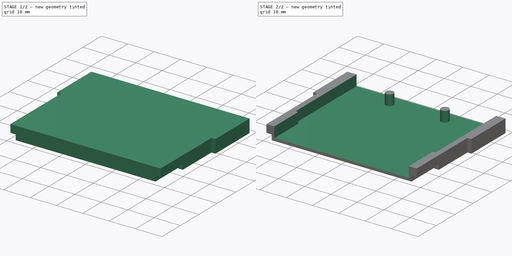
[diagram: build sequence overview — one tinted view per stage of 2, left to right]
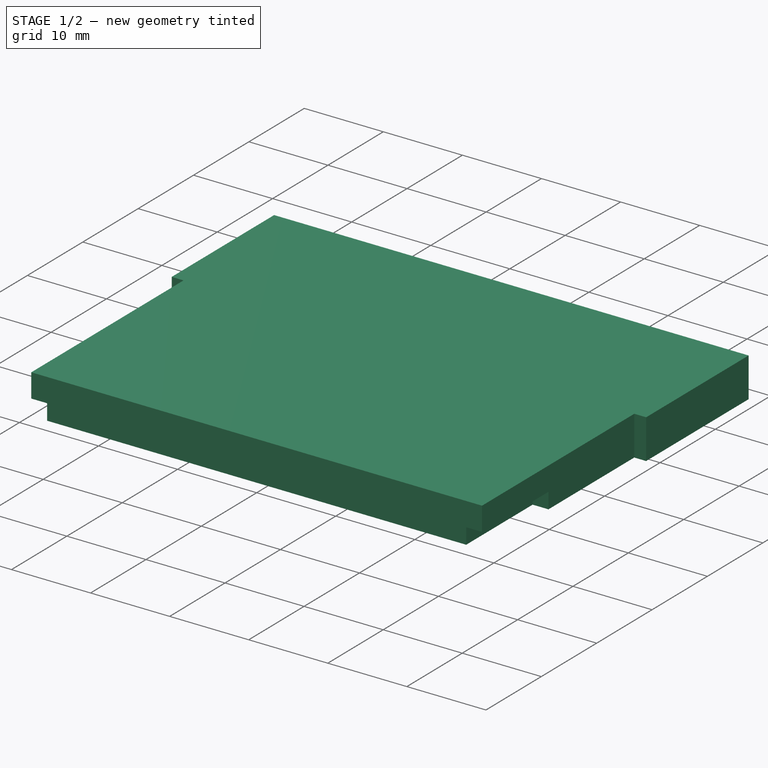
[diagram: stage 1 of 2 — iso view after this stage's code; geometry added in this stage tinted green]
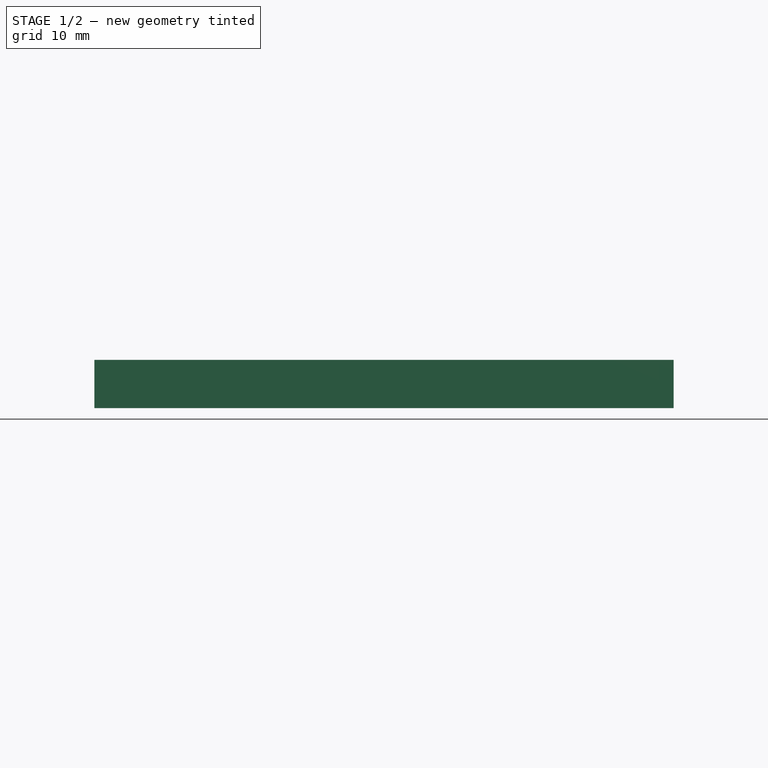
[diagram: stage 1 of 2 — front view after this stage's code; geometry added in this stage tinted green]
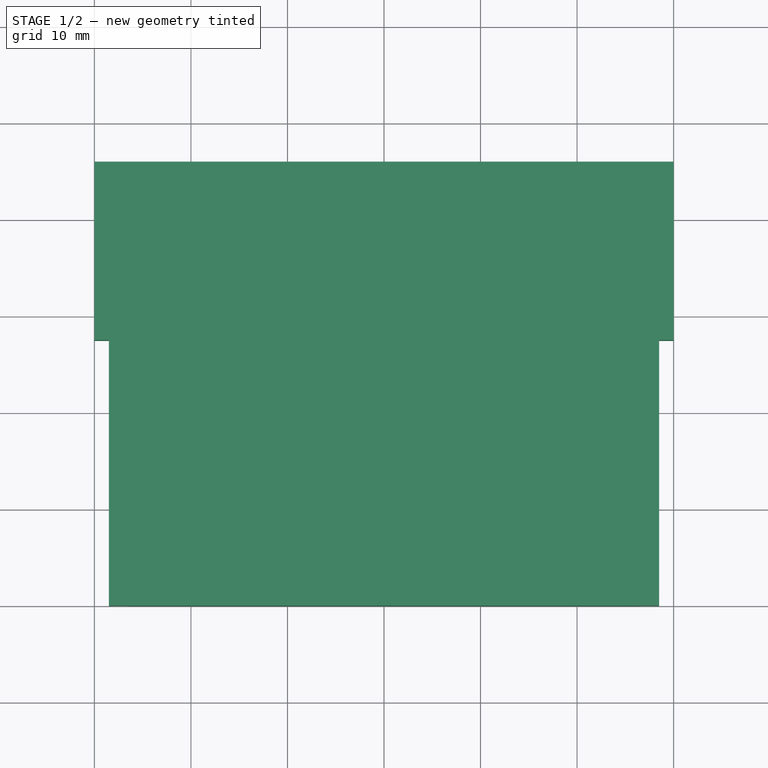
[diagram: stage 1 of 2 — top view after this stage's code; geometry added in this stage tinted green]
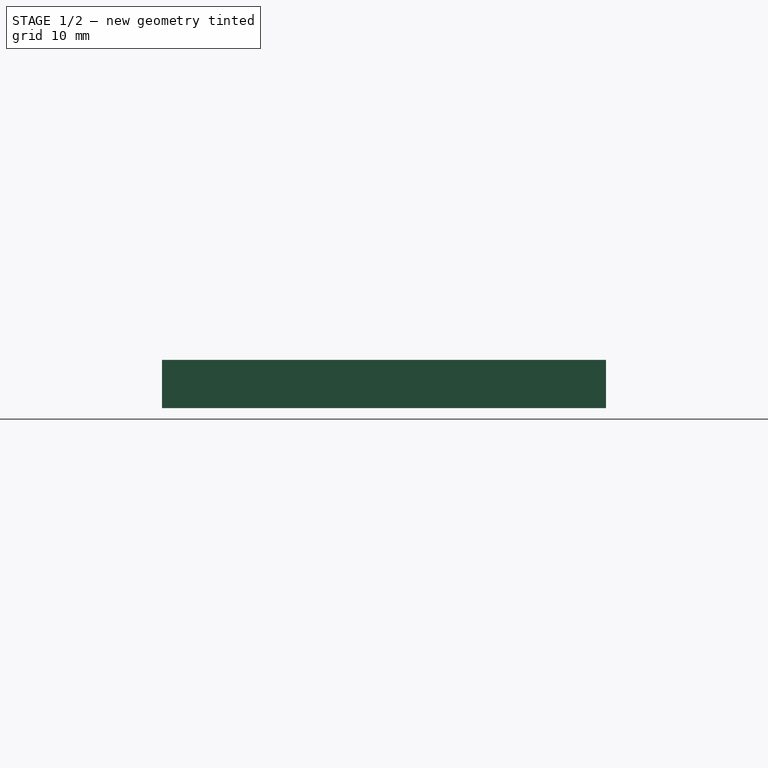
[diagram: stage 1 of 2 — right view after this stage's code; geometry added in this stage tinted green]
FCSTD DOCUMENT  (FreeCAD 0.18R4 (GitTag))
Label: case
License: All rights reserved
LicenseURL: http://en.wikipedia.org/wiki/All_rights_reserved
objects: Sketcher::SketchObject×4, PartDesign::Pad×2, PartDesign::Pocket×2, PartDesign::Body×1, App::Part×1
note: 13 computed .brp shape members not serialized (recipe doc carries the construction recipe); baked Part::Feature solids carry a one-line shape summary decoded from their .brp

FEATURE [Sketcher::SketchObject] Sketch
  MapMode = 5
  Support = -> [XY_Plane001]
  sketch-geometry (8):
    g0: LineSegment StartX=-28.5 StartY=0 StartZ=0 EndX=28.5 EndY=0 EndZ=0
    g1: LineSegment StartX=28.5 StartY=0 StartZ=0 EndX=28.5 EndY=27.5 EndZ=0
    g2: LineSegment StartX=28.5 StartY=27.5 StartZ=0 EndX=30 EndY=27.5 EndZ=0
    g3: LineSegment StartX=30 StartY=27.5 StartZ=0 EndX=30 EndY=46 EndZ=0
    g4: LineSegment StartX=30 StartY=46 StartZ=0 EndX=-30 EndY=46 EndZ=0
    g5: LineSegment StartX=-30 StartY=46 StartZ=0 EndX=-30 EndY=27.5 EndZ=0
    g6: LineSegment StartX=-30 StartY=27.5 StartZ=0 EndX=-28.5 EndY=27.5 EndZ=0
    g7: LineSegment StartX=-28.5 StartY=27.5 StartZ=0 EndX=-28.5 EndY=0 EndZ=0
  constraints (22):
    c: Coincident(g0,g1)
    c: Coincident(g1,g2)
    c: Coincident(g2,g3)
    c: Coincident(g3,g4)
    c: Coincident(g4,g5)
    c: Coincident(g5,g6)
    c: Coincident(g6,g7)
    c: Coincident(g7,g0)
    c: Vertical(g7)
    c: Vertical(g5)
    c: Vertical(g3)
    c: Vertical(g1)
    c: Horizontal(g6)
    c: Horizontal(g2)
    c: DistanceX(g4,g4) = 60
    c: Symmetric(g4,g3,g-2)
    c: DistanceX(g0,g0) = 57
    c: DistanceY(g1,g1) = 27.5
    c: PointOnObject(g-1,g0)
    c: Symmetric(g6,g1,g-2)
    c: Horizontal(g0)
    c: DistanceY(g0,g4) = 46
FEATURE [PartDesign::Pad] Pad
  Length = 5
  Length2 = 100
  Profile = -> Sketch
  Type = 0
FEATURE [Sketcher::SketchObject] Sketch001
  ExternalGeometry = -> [Pad]
  MapMode = 5
  Placement = pos=(0,0,0) rot=(1,0,0;3.14159rad)
  Support = -> [Pad]
  sketch-geometry (8):
    g0: LineSegment StartX=-28.5 StartY=0 StartZ=0 EndX=-26.5 EndY=0 EndZ=0
    g1: LineSegment StartX=-26.5 StartY=0 StartZ=0 EndX=-26.5 EndY=-12 EndZ=0
    g2: LineSegment StartX=-26.5 StartY=-12 StartZ=0 EndX=-28.5 EndY=-12 EndZ=0
    g3: LineSegment StartX=-28.5 StartY=-12 StartZ=0 EndX=-28.5 EndY=0 EndZ=0
    g4: LineSegment StartX=26.5 StartY=0 StartZ=0 EndX=28.5 EndY=0 EndZ=0
    g5: LineSegment StartX=28.5 StartY=0 StartZ=0 EndX=28.5 EndY=-12 EndZ=0
    g6: LineSegment StartX=28.5 StartY=-12 StartZ=0 EndX=26.5 EndY=-12 EndZ=0
    g7: LineSegment StartX=26.5 StartY=-12 StartZ=0 EndX=26.5 EndY=0 EndZ=0
  constraints (21):
    c: Coincident(g0,g1)
    c: Coincident(g1,g2)
    c: Coincident(g2,g3)
    c: Coincident(g3,g0)
    c: Horizontal(g0)
    c: Horizontal(g2)
    c: Vertical(g1)
    c: Vertical(g3)
    c: Coincident(g4,g5)
    c: Coincident(g5,g6)
    c: Coincident(g6,g7)
    c: Coincident(g7,g4)
    c: Horizontal(g4)
    c: Horizontal(g6)
    c: Vertical(g5)
    c: Vertical(g7)
    c: Coincident(g0,g-3)
    c: Symmetric(g1,g6,g-2)
    c: Symmetric(g0,g4,g-2)
    c: DistanceX(g0,g0) = 2
    c: DistanceY(g3,g3) = 12
FEATURE [PartDesign::Pocket] Pocket
  BaseFeature = -> Pad
  Length = 2
  Length2 = 100
  Profile = -> Sketch001
  Type = 0
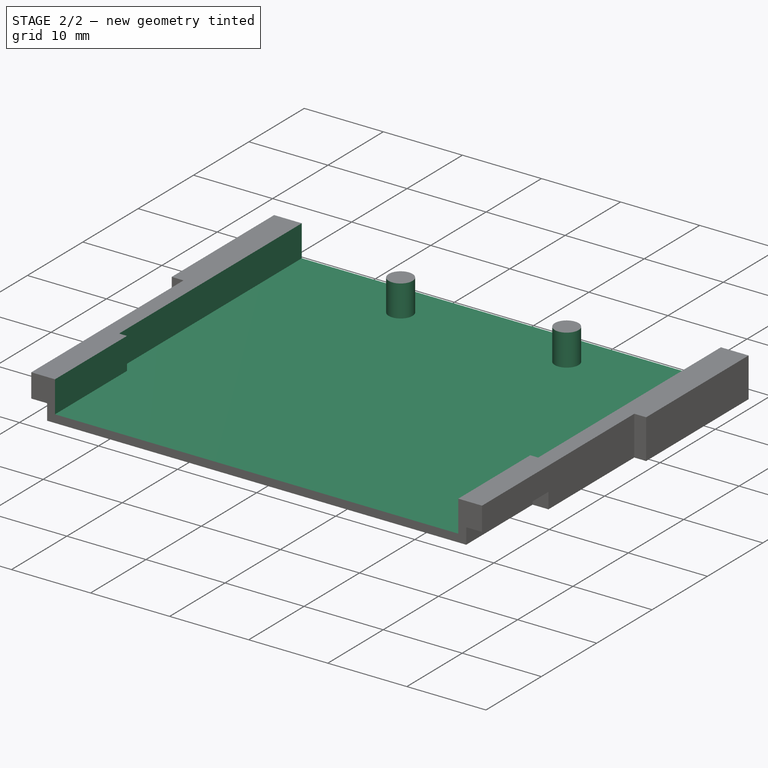
[diagram: stage 2 of 2 — iso view after this stage's code; geometry added in this stage tinted green]
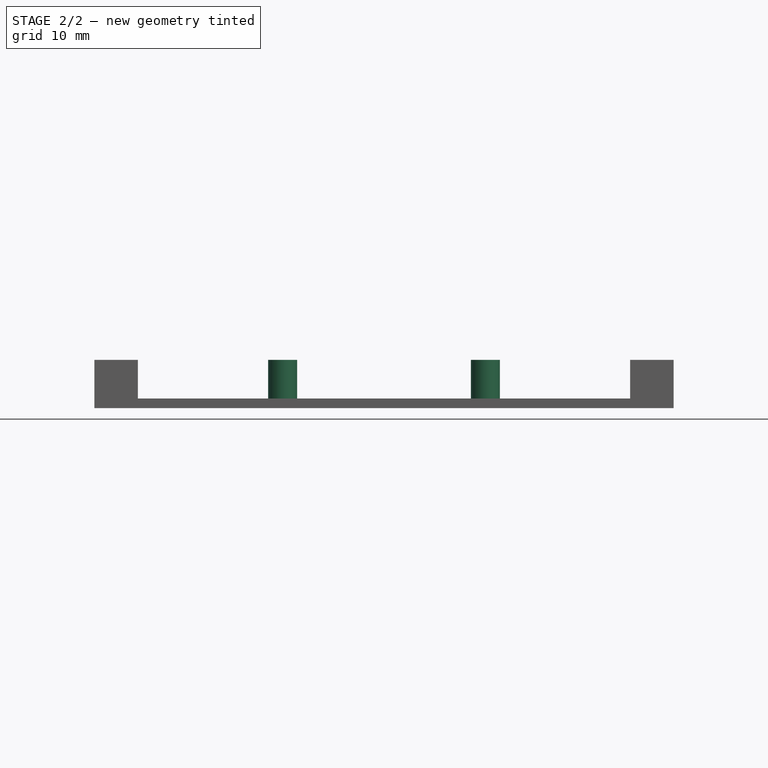
[diagram: stage 2 of 2 — front view after this stage's code; geometry added in this stage tinted green]
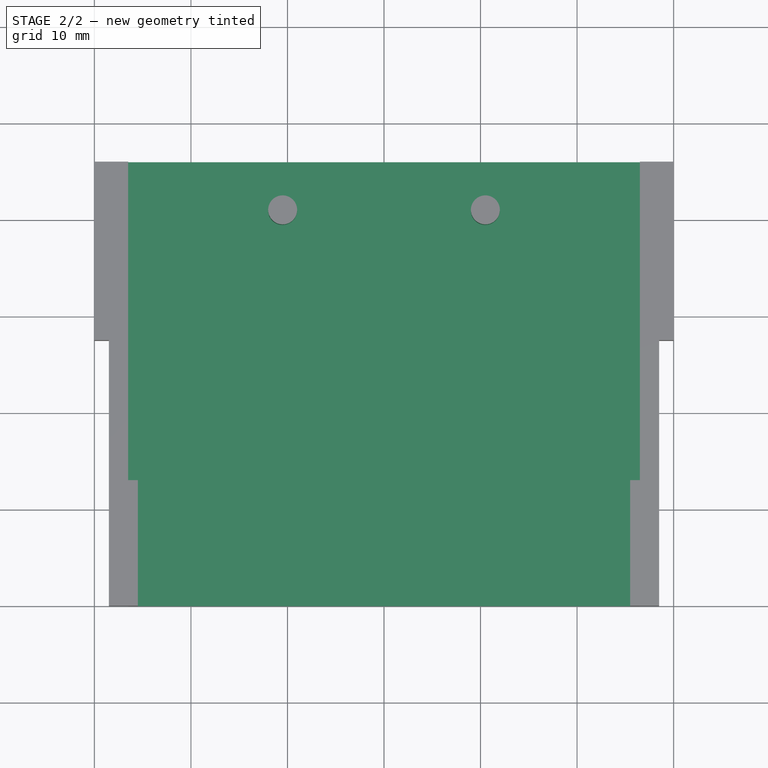
[diagram: stage 2 of 2 — top view after this stage's code; geometry added in this stage tinted green]
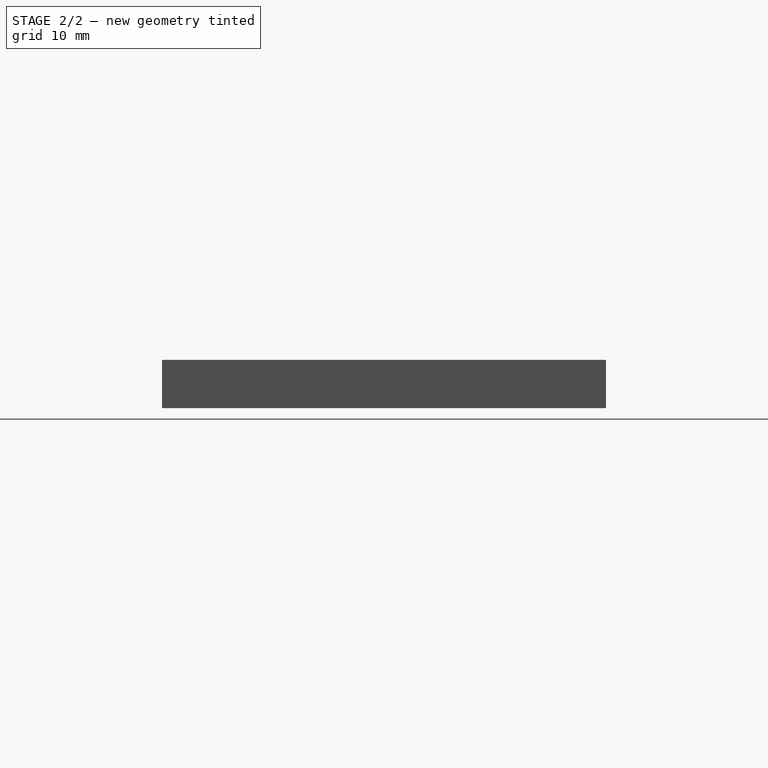
[diagram: stage 2 of 2 — right view after this stage's code; geometry added in this stage tinted green]
FEATURE [Sketcher::SketchObject] Sketch002
  ExternalGeometry = -> [Pocket]
  MapMode = 5
  Placement = pos=(0,0,5) rot=(0,0,1;0rad)
  Support = -> [Pocket]
  sketch-geometry (8):
    g0: LineSegment StartX=-25.5 StartY=0 StartZ=0 EndX=25.5 EndY=0 EndZ=0
    g1: LineSegment StartX=25.5 StartY=0 StartZ=0 EndX=25.5 EndY=13 EndZ=0
    g2: LineSegment StartX=25.5 StartY=13 StartZ=0 EndX=26.5 EndY=13 EndZ=0
    g3: LineSegment StartX=26.5 StartY=13 StartZ=0 EndX=26.5 EndY=46 EndZ=0
    g4: LineSegment StartX=26.5 StartY=46 StartZ=0 EndX=-26.5 EndY=46 EndZ=0
    g5: LineSegment StartX=-26.5 StartY=46 StartZ=0 EndX=-26.5 EndY=13 EndZ=0
    g6: LineSegment StartX=-26.5 StartY=13 StartZ=0 EndX=-25.5 EndY=13 EndZ=0
    g7: LineSegment StartX=-25.5 StartY=13 StartZ=0 EndX=-25.5 EndY=0 EndZ=0
  constraints (21):
    c: Coincident(g0,g1)
    c: Coincident(g1,g2)
    c: Coincident(g2,g3)
    c: Coincident(g3,g4)
    c: Coincident(g4,g5)
    c: Coincident(g5,g6)
    c: Coincident(g6,g7)
    c: Coincident(g7,g0)
    c: Horizontal(g6)
    c: Horizontal(g2)
    c: Vertical(g5)
    c: Vertical(g3)
    c: Vertical(g1)
    c: Symmetric(g0,g0,g-2)
    c: Symmetric(g4,g3,g-2)
    c: DistanceX(g4,g4) = 53
    c: Symmetric(g1,g6,g-2)
    c: DistanceY(g1,g1) = 13
    c: PointOnObject(g-1,g0)
    c: PointOnObject(g4,g-3)
    c: DistanceX(g0,g0) = 51
FEATURE [PartDesign::Pocket] Pocket001
  BaseFeature = -> Pocket
  Length = 4
  Length2 = 100
  Profile = -> Sketch002
  Type = 0
FEATURE [Sketcher::SketchObject] Sketch003
  MapMode = 5
  Placement = pos=(0,0,1) rot=(0,0,1;0rad)
  Support = -> [Pocket001]
  sketch-geometry (2):
    g0: Circle CenterX=-10.5 CenterY=41 CenterZ=0 NormalX=0 NormalY=0 NormalZ=1 AngleXU=0 Radius=1.5
    g1: Circle CenterX=10.5 CenterY=41 CenterZ=0 NormalX=0 NormalY=0 NormalZ=1 AngleXU=0 Radius=1.5
  constraints (5):
    c: Symmetric(g0,g1,g-2)
    c: DistanceY(g-1,g0) = 41
    c: Radius(g1) = 1.5
    c: Equal(g1,g0)
    c: DistanceX(g0,g-1) = 10.5
FEATURE [PartDesign::Pad] Pad001
  BaseFeature = -> Pocket001
  Length = 4
  Length2 = 100
  Profile = -> Sketch003
  Type = 0
FEATURE [PartDesign::Body] Body
  Group = -> [Sketch,Pad,Sketch001,Pocket,Sketch002,Pocket001,Sketch003,Pad001]
  Origin = -> Origin001
  Tip = -> Pad001
FEATURE [App::Part] Part
  Group = -> [Body]
  Origin = -> Origin
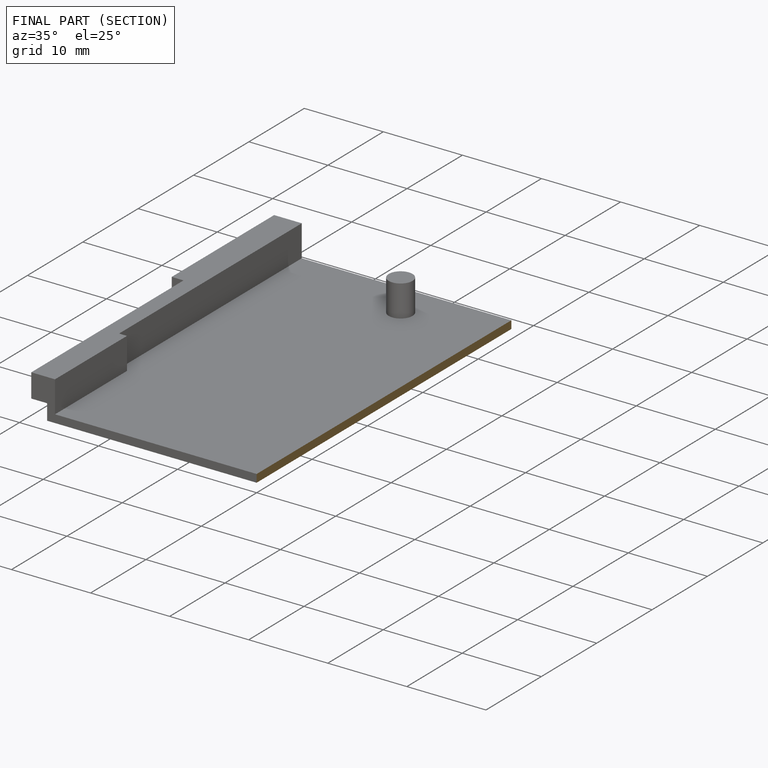
[diagram: finished part — half-section view (interior)]
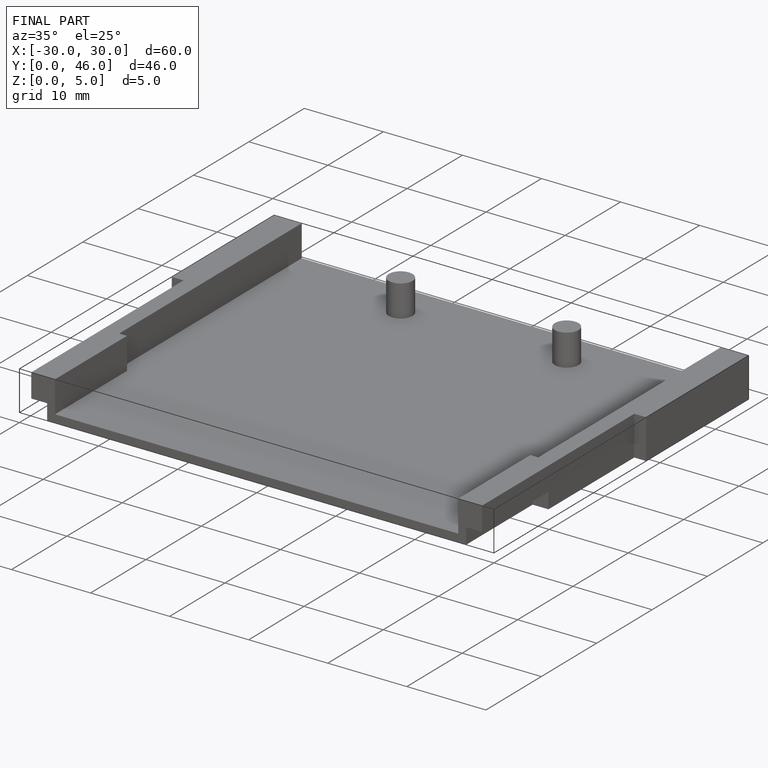
[diagram: finished part — iso view with bounding-box wireframe]
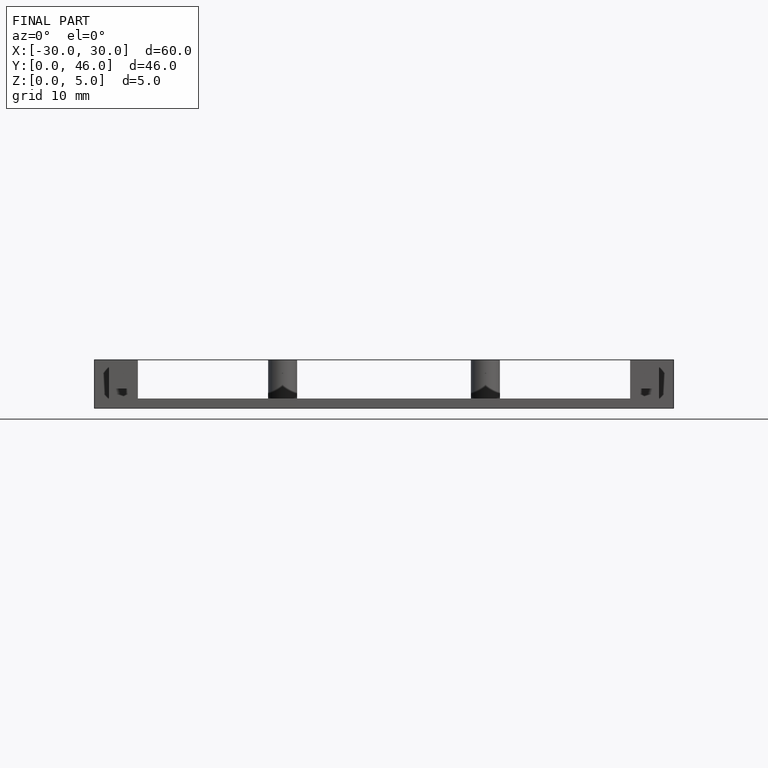
[diagram: finished part — front view with bounding-box wireframe]
